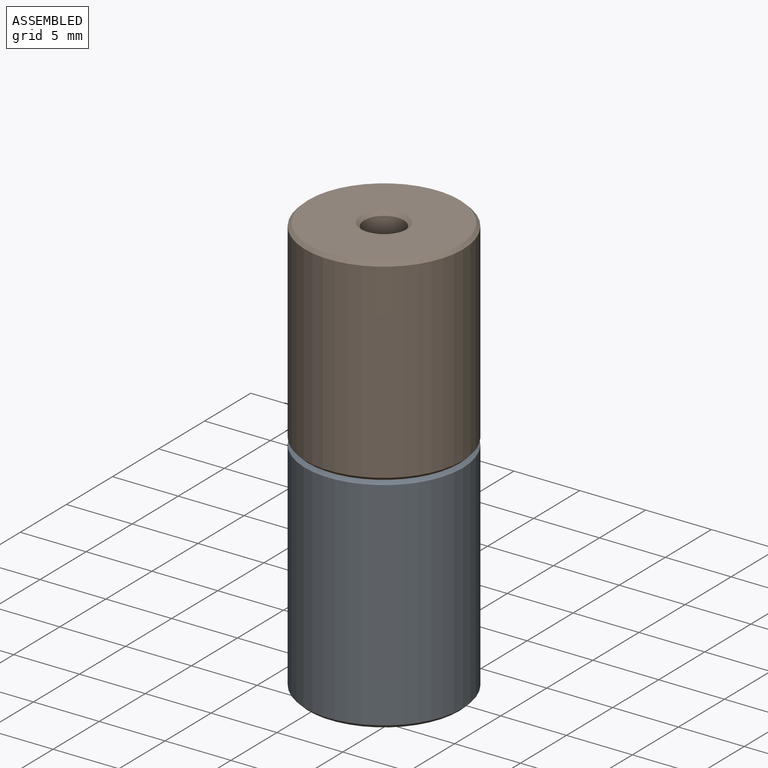
[diagram: assembled view]
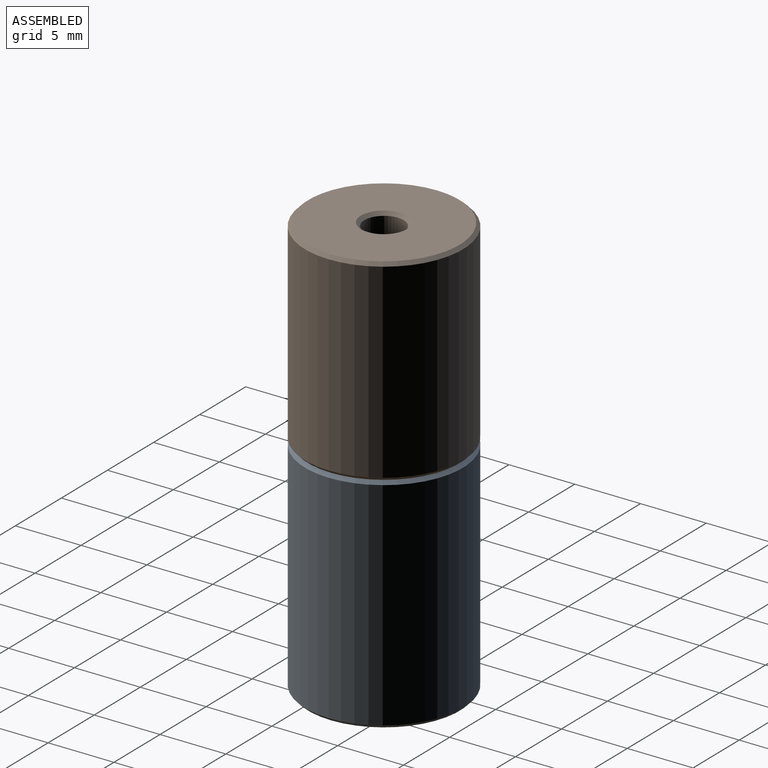
[diagram: assembled view, second angle]
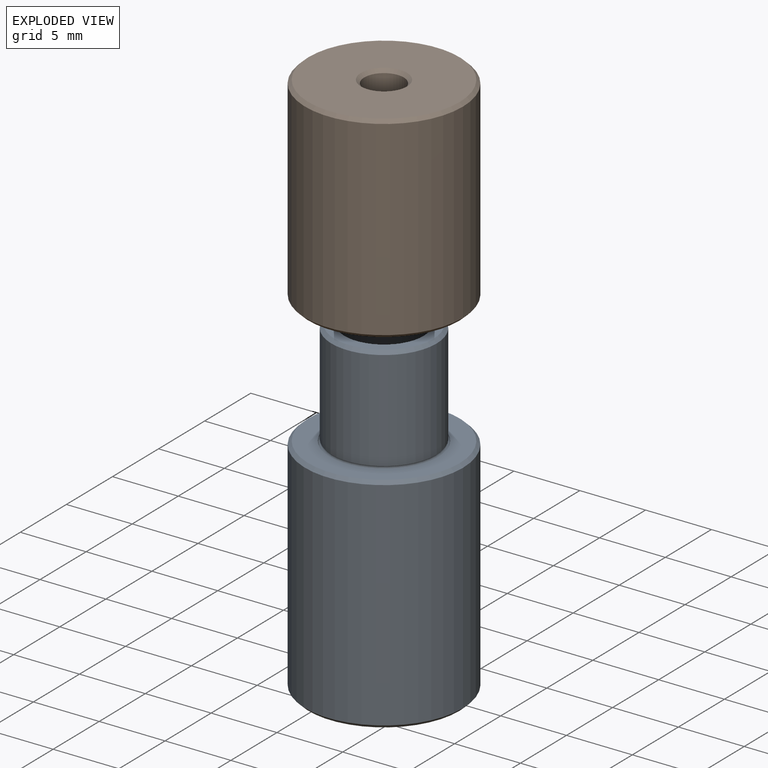
[diagram: exploded view]
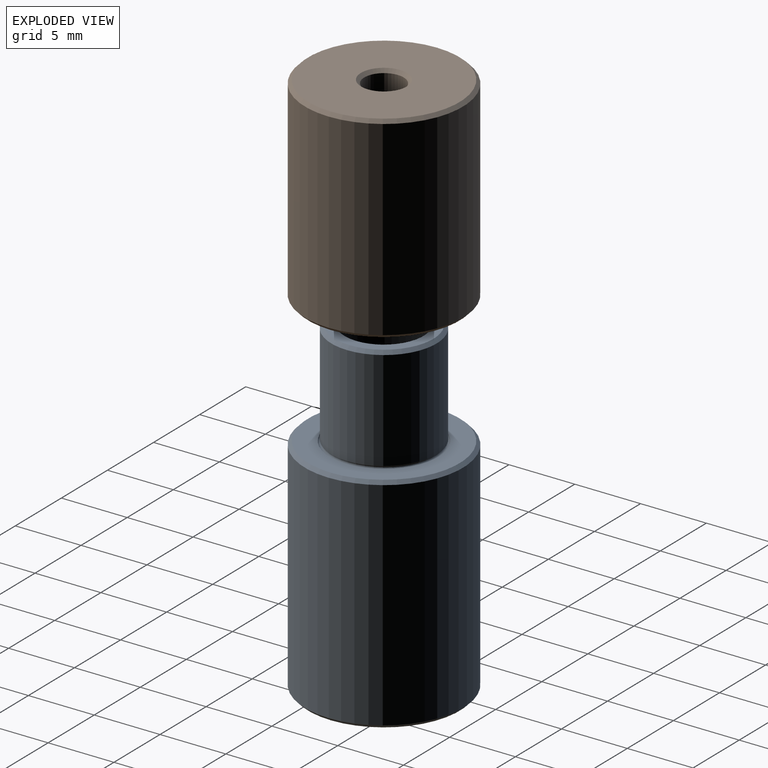
[diagram: exploded view, second angle]
ASSEMBLY  parts=2 mates=2
PART A: 12 faces, bbox 12x12x25 mm
  f0: cylinder r=6mm len=16.5mm, axis (0,0,1), area 622mm2, adj f10,f11
  f1: plane 11.5x11.5mm, normal (0,0,1), area 50.4mm2, adj f2,f10
  f2: torus R=4mm, axis (0,0,1), area 14.7mm2, adj f1,f3
  f3: cylinder r=4mm len=8mm, axis (0,0,1), area 191.6mm2, adj f2,f9
  f4: plane 7.5x7.5mm, normal (0,0,1), area 15.9mm2, adj f5,f9
  f5: cylinder r=3mm len=15mm, axis (0,0,1), area 282.7mm2, adj f4,f6
  f6: plane 6x6mm, normal (0,0,1), area 21.2mm2, adj f5,f7
  f7: cylinder r=1.5mm len=10mm, axis (0,0,1), area 94.2mm2, adj f6,f8
  f8: plane 11.5x11.5mm, normal (0,0,-1), area 96.8mm2, adj f7,f11
  f9: cone r=3.75mm half-angle=45deg, axis (0,0,-1), area 8.6mm2, adj f3,f4
  f10: cone r=5.75mm half-angle=45deg, axis (0,0,-1), area 13.1mm2, adj f0,f1
  f11: cone r=6mm half-angle=45deg, axis (0,0,1), area 13.1mm2, adj f0,f8
PART B: 10 faces, bbox 12x12x15 mm
  f0: cone r=0mm half-angle=59deg, axis (0,0,1), area 34.1mm2, adj f4,f5
  f1: plane 11.5x11.5mm, normal (0,0,1), area 62mm2, adj f7,f8
  f2: plane 11.5x11.5mm, normal (0,0,-1), area 94.2mm2, adj f6,f9
  f3: cylinder r=6mm len=14.5mm, axis (0,0,1), area 546.6mm2, adj f8,f9
  f4: cylinder r=3.4mm len=9.75mm, axis (0,0,1), area 208.3mm2, adj f0,f7
  f5: cylinder r=1.5mm len=3.61mm, axis (0,0,1), area 34mm2, adj f0,f6
  f6: cone r=1.5mm half-angle=45deg, axis (0,0,-1), area 3.6mm2, adj f2,f5
  f7: cone r=3.4mm half-angle=45deg, axis (0,0,1), area 7.8mm2, adj f1,f4
  f8: cone r=5.75mm half-angle=45deg, axis (0,0,-1), area 13.1mm2, adj f1,f3
  f9: cone r=6mm half-angle=45deg, axis (0,0,1), area 13.1mm2, adj f2,f3
PLACE A rot(axis=(0,0,1),180deg) t=(-2.6,18.2,-14.01)mm
PLACE B rot(axis=(0,1,0),180deg) t=(-2.6,18.2,17.9)mm
MATE planar B.f0 <-> A.f0  axis (0,0,-1) through (-2.6,18.2,2.99)mm
MATE cylindrical A.f0 <-> B.f0  axis (0,0,1) through (-2.6,18.2,6.93)mm
